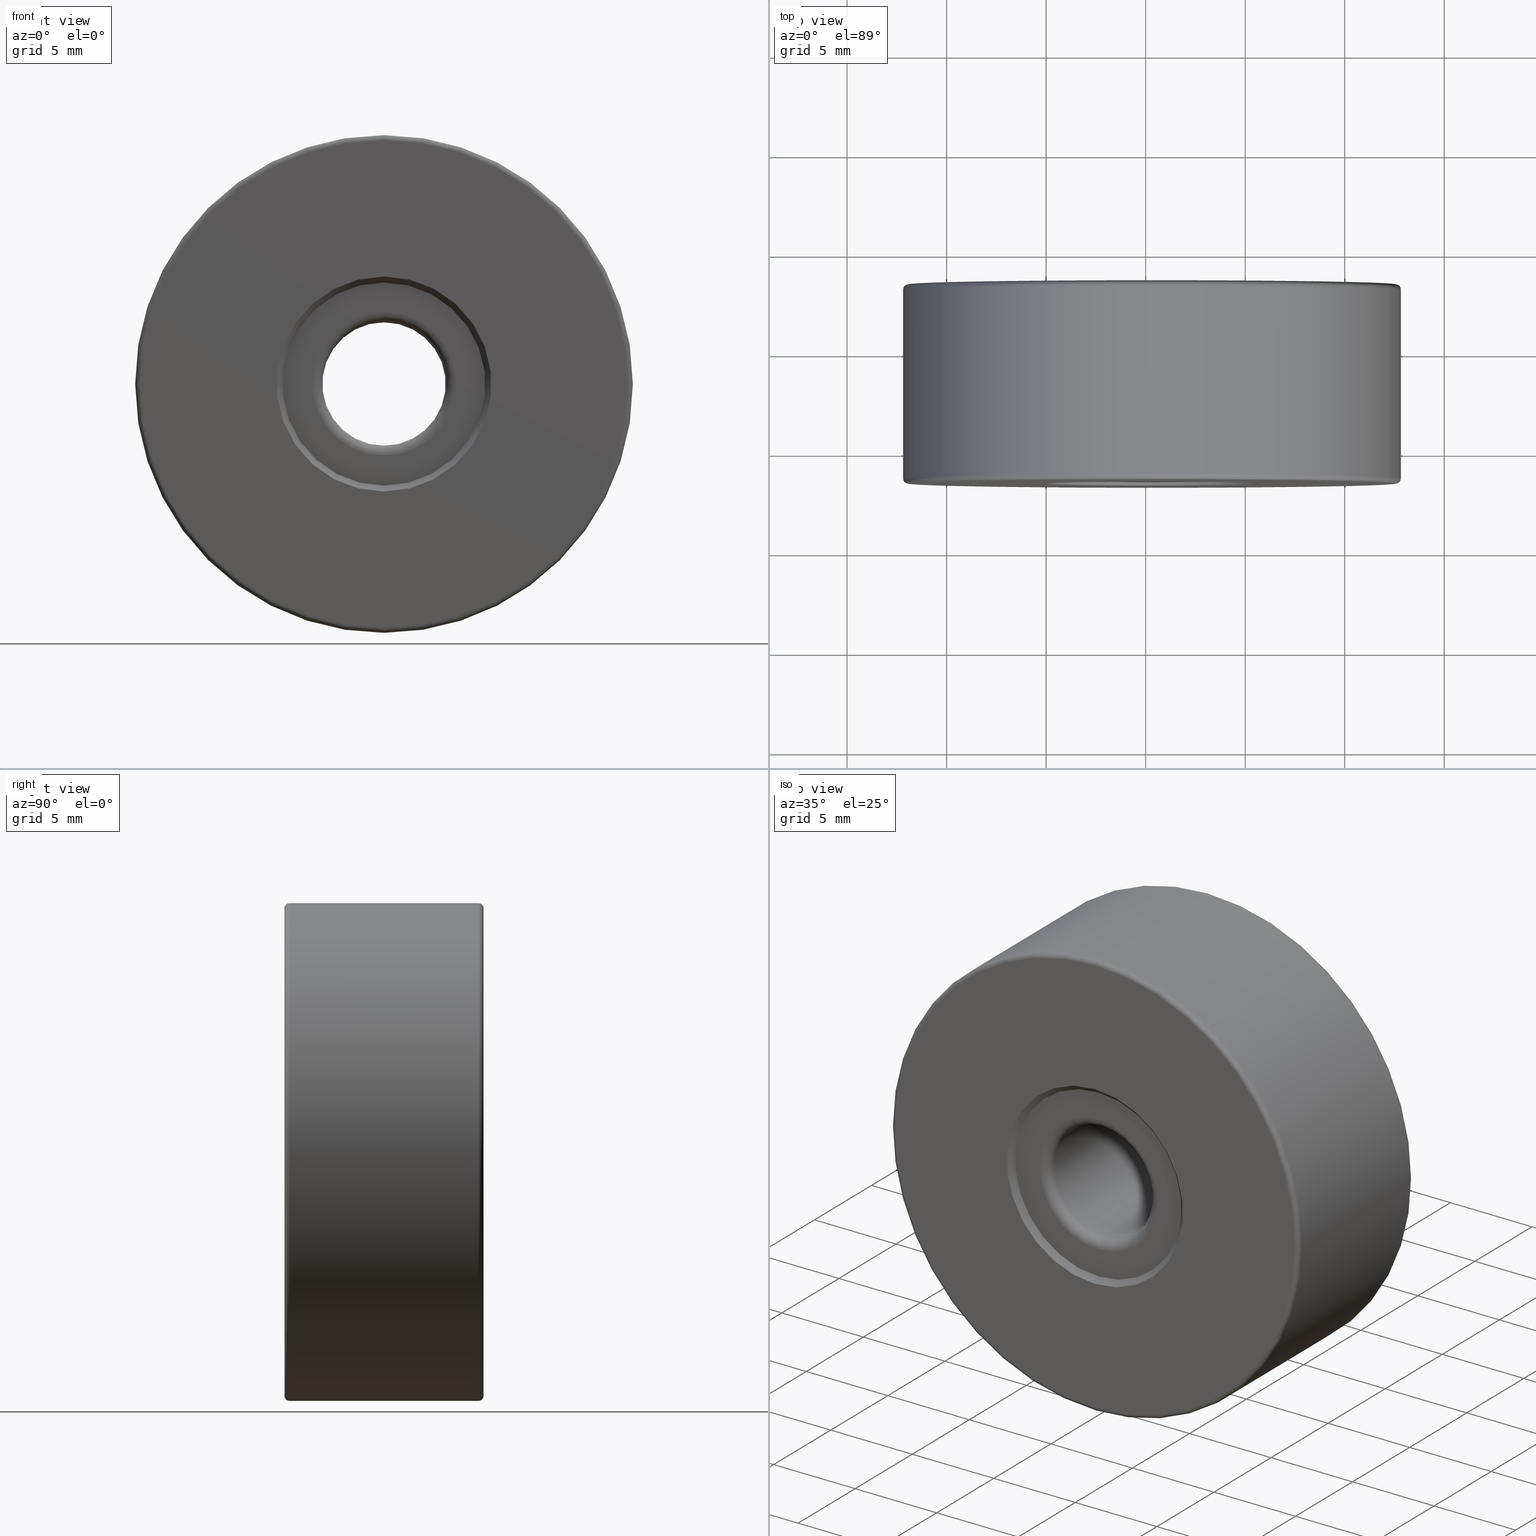
[diagram: canonical four-view strip — front | top / right | iso, engineering-drawing reading convention]
A machine part, canonical four-view strip (front | top / right | iso — engineering-drawing reading convention). The complete STEP part file that produces these views, byte-faithful:
ISO-10303-21;
HEADER;
FILE_DESCRIPTION (( 'STEP AP203' ),
    '1' );
FILE_NAME ('1.4.2.110_ZGH-25-DK10.STEP',
    '2022-04-15T03:01:25',
    ( '' ),
    ( '' ),
    'SwSTEP 2.0',
    'SolidWorks 2021',
    '' );
FILE_SCHEMA (( 'CONFIG_CONTROL_DESIGN' ));
ENDSEC;

DATA;
#1 = ORIENTED_EDGE ( 'NONE', *, *, #516, .T. ) ;
#2 = EDGE_CURVE ( 'NONE', #55, #326, #376, .T. ) ;
#3 = FACE_OUTER_BOUND ( 'NONE', #410, .T. ) ;
#4 = ORIENTED_EDGE ( 'NONE', *, *, #186, .T. ) ;
#5 = DIRECTION ( 'NONE',  ( 0.0000000000000000000, 1.000000000000000000, 0.0000000000000000000 ) ) ;
#6 = TOROIDAL_SURFACE ( 'NONE', #397, 3.600000000000000089, 0.5000000000000000000 ) ;
#7 = EDGE_CURVE ( 'NONE', #604, #86, #145, .T. ) ;
#8 = DIRECTION ( 'NONE',  ( 0.0000000000000000000, 0.0000000000000000000, -1.000000000000000000 ) ) ;
#9 = CARTESIAN_POINT ( 'NONE',  ( -4.682026255059964726, -5.794975976998276046, 28.10000000000000142 ) ) ;
#10 = EDGE_CURVE ( 'NONE', #51, #87, #102, .T. ) ;
#11 = DIRECTION ( 'NONE',  ( 0.0000000000000000000, 1.000000000000000000, 0.0000000000000000000 ) ) ;
#12 = CARTESIAN_POINT ( 'NONE',  ( -4.682026255059962949, 3.405024023001725020, 12.75000000000000178 ) ) ;
#13 = CARTESIAN_POINT ( 'NONE',  ( -4.682026255059964726, -6.594975976998274980, 28.10000000000000142 ) ) ;
#14 = AXIS2_PLACEMENT_3D ( 'NONE', #412, #128, #508 ) ;
#15 = AXIS2_PLACEMENT_3D ( 'NONE', #252, #62, #443 ) ;
#16 = CARTESIAN_POINT ( 'NONE',  ( -4.682026255059964726, -6.344975976998274980, 12.50000000000000000 ) ) ;
#17 = ADVANCED_FACE ( 'NONE', ( #315 ), #233, .T. ) ;
#18 = DIRECTION ( 'NONE',  ( 0.0000000000000000000, 0.0000000000000000000, -1.000000000000000000 ) ) ;
#19 = ORIENTED_EDGE ( 'NONE', *, *, #27, .F. ) ;
#20 = DIRECTION ( 'NONE',  ( 1.000000000000000000, 0.0000000000000000000, -1.224646799147353207E-16 ) ) ;
#21 = CARTESIAN_POINT ( 'NONE',  ( -4.682026255059964726, -6.344975976998274980, 25.00000000000000000 ) ) ;
#22 = PERSON_AND_ORGANIZATION ( #607, #368 ) ;
#23 = CARTESIAN_POINT ( 'NONE',  ( -4.682026255059964726, -5.794975976998276046, 25.00000000000000000 ) ) ;
#24 = PERSON_AND_ORGANIZATION ( #607, #368 ) ;
#25 = AXIS2_PLACEMENT_3D ( 'NONE', #484, #236, #429 ) ;
#26 = CARTESIAN_POINT ( 'NONE',  ( -4.682026255059962949, 3.405024023001725020, 37.50000000000000711 ) ) ;
#27 = EDGE_CURVE ( 'NONE', #131, #246, #195, .T. ) ;
#28 = DIRECTION ( 'NONE',  ( -1.000000000000000000, 0.0000000000000000000, 0.0000000000000000000 ) ) ;
#29 = ORIENTED_EDGE ( 'NONE', *, *, #302, .F. ) ;
#30 = APPROVAL_DATE_TIME ( #268, #90 ) ;
#31 = DIRECTION ( 'NONE',  ( 0.0000000000000000000, 0.0000000000000000000, -1.000000000000000000 ) ) ;
#32 = ORIENTED_EDGE ( 'NONE', *, *, #278, .T. ) ;
#33 = LOCAL_TIME ( 11, 1, 25.00000000000000000, #271 ) ;
#34 = TOROIDAL_SURFACE ( 'NONE', #565, 3.600000000000000089, 0.5000000000000000000 ) ;
#35 = AXIS2_PLACEMENT_3D ( 'NONE', #65, #502, #18 ) ;
#36 = ADVANCED_FACE ( 'NONE', ( #328 ), #317, .F. ) ;
#37 = CARTESIAN_POINT ( 'NONE',  ( -4.682026255059962949, -6.344975976998274980, 37.50000000000000711 ) ) ;
#38 = VERTEX_POINT ( 'NONE', #551 ) ;
#39 = EDGE_CURVE ( 'NONE', #326, #51, #205, .T. ) ;
#40 = CARTESIAN_POINT ( 'NONE',  ( -4.682026255059964726, -5.794975976998276046, 21.40000000000000213 ) ) ;
#41 = ORIENTED_EDGE ( 'NONE', *, *, #578, .F. ) ;
#42 = DIRECTION ( 'NONE',  ( -1.000000000000000000, -0.0000000000000000000, -0.0000000000000000000 ) ) ;
#43 = ORIENTED_EDGE ( 'NONE', *, *, #99, .F. ) ;
#44 = DIRECTION ( 'NONE',  ( 0.0000000000000000000, 0.0000000000000000000, -1.000000000000000000 ) ) ;
#45 = AXIS2_PLACEMENT_3D ( 'NONE', #356, #548, #120 ) ;
#46 = TOROIDAL_SURFACE ( 'NONE', #555, 12.25000000000000000, 0.2500000000000000000 ) ;
#47 = ORIENTED_EDGE ( 'NONE', *, *, #158, .T. ) ;
#48 = CARTESIAN_POINT ( 'NONE',  ( -4.682026255059963837, 3.105024023001725197, 21.40000000000000213 ) ) ;
#49 = FACE_OUTER_BOUND ( 'NONE', #486, .T. ) ;
#50 = ADVANCED_FACE ( 'NONE', ( #49 ), #34, .T. ) ;
#51 = VERTEX_POINT ( 'NONE', #37 ) ;
#52 = FACE_OUTER_BOUND ( 'NONE', #230, .T. ) ;
#53 = ORIENTED_EDGE ( 'NONE', *, *, #148, .F. ) ;
#54 = DIRECTION ( 'NONE',  ( 0.0000000000000000000, -0.0000000000000000000, 1.000000000000000000 ) ) ;
#55 = VERTEX_POINT ( 'NONE', #537 ) ;
#56 = CIRCLE ( 'NONE', #224, 0.2500000000000002220 ) ;
#57 = CARTESIAN_POINT ( 'NONE',  ( -4.682026255059962949, 3.155024023001725020, 12.50000000000000000 ) ) ;
#58 = EDGE_CURVE ( 'NONE', #413, #143, #59, .T. ) ;
#59 = LINE ( 'NONE', #13, #266 ) ;
#60 = DIRECTION ( 'NONE',  ( -1.000000000000000000, 0.0000000000000000000, 0.0000000000000000000 ) ) ;
#61 = PRODUCT_DEFINITION_SHAPE ( 'NONE', 'NONE',  #76 ) ;
#62 = DIRECTION ( 'NONE',  ( 0.0000000000000000000, 0.0000000000000000000, 1.000000000000000000 ) ) ;
#63 = DIRECTION ( 'NONE',  ( 0.0000000000000000000, 0.0000000000000000000, 1.000000000000000000 ) ) ;
#64 = LINE ( 'NONE', #345, #322 ) ;
#65 = CARTESIAN_POINT ( 'NONE',  ( -4.682026255059964726, -6.594975976998274980, 25.00000000000000000 ) ) ;
#66 = AXIS2_PLACEMENT_3D ( 'NONE', #176, #563, #324 ) ;
#67 = VECTOR ( 'NONE', #241, 1000.000000000000000 ) ;
#68 = ORIENTED_EDGE ( 'NONE', *, *, #154, .F. ) ;
#69 = DIRECTION ( 'NONE',  ( 0.0000000000000000000, 0.0000000000000000000, 1.000000000000000000 ) ) ;
#70 = CARTESIAN_POINT ( 'NONE',  ( -4.682026255059964726, -6.344975976998274980, 25.00000000000000000 ) ) ;
#71 = PERSON_AND_ORGANIZATION ( #607, #368 ) ;
#72 = CARTESIAN_POINT ( 'NONE',  ( -4.682026255059963837, 3.405024023001725020, 19.59999999999999787 ) ) ;
#73 = DIRECTION ( 'NONE',  ( -0.0000000000000000000, -1.000000000000000000, -0.0000000000000000000 ) ) ;
#74 = CARTESIAN_POINT ( 'NONE',  ( -4.682026255059964726, 3.405024023001725020, 25.00000000000000000 ) ) ;
#75 = SECURITY_CLASSIFICATION ( '', '', #306 ) ;
#76 = PRODUCT_DEFINITION ( 'δ֪', '', #257, #214 ) ;
#77 = APPROVAL_ROLE ( '' ) ;
#78 = ORIENTED_EDGE ( 'NONE', *, *, #578, .T. ) ;
#79 = DIRECTION ( 'NONE',  ( 0.0000000000000000000, 0.0000000000000000000, 1.000000000000000000 ) ) ;
#80 = COORDINATED_UNIVERSAL_TIME_OFFSET ( 8, 0, .AHEAD. ) ;
#81 = CC_DESIGN_PERSON_AND_ORGANIZATION_ASSIGNMENT ( #71, #357, ( #257 ) ) ;
#82 = EDGE_LOOP ( 'NONE', ( #159, #29, #472, #518 ) ) ;
#83 = DIRECTION ( 'NONE',  ( 0.0000000000000000000, 0.0000000000000000000, 1.000000000000000000 ) ) ;
#84 = CIRCLE ( 'NONE', #172, 0.5000000000000004441 ) ;
#85 = CIRCLE ( 'NONE', #475, 0.2500000000000002220 ) ;
#86 = VERTEX_POINT ( 'NONE', #582 ) ;
#87 = VERTEX_POINT ( 'NONE', #16 ) ;
#88 = FACE_BOUND ( 'NONE', #187, .T. ) ;
#89 = ORIENTED_EDGE ( 'NONE', *, *, #27, .T. ) ;
#90 = APPROVAL ( #553, 'δָ��' ) ;
#91 = DIRECTION ( 'NONE',  ( 0.0000000000000000000, 0.0000000000000000000, 1.000000000000000000 ) ) ;
#92 = VECTOR ( 'NONE', #395, 1000.000000000000000 ) ;
#93 = LOCAL_TIME ( 11, 1, 25.00000000000000000, #173 ) ;
#94 = ORIENTED_EDGE ( 'NONE', *, *, #296, .F. ) ;
#95 = DIRECTION ( 'NONE',  ( 0.0000000000000000000, 0.0000000000000000000, 1.000000000000000000 ) ) ;
#96 = ORIENTED_EDGE ( 'NONE', *, *, #228, .T. ) ;
#97 = CARTESIAN_POINT ( 'NONE',  ( -4.682026255059964726, -6.594975976998274980, 21.90000000000000213 ) ) ;
#98 = DIRECTION ( 'NONE',  ( 0.0000000000000000000, 0.0000000000000000000, 1.000000000000000000 ) ) ;
#99 = EDGE_CURVE ( 'NONE', #86, #604, #311, .T. ) ;
#100 = VERTEX_POINT ( 'NONE', #110 ) ;
#101 = PLANE ( 'NONE',  #313 ) ;
#102 = CIRCLE ( 'NONE', #554, 12.50000000000000355 ) ;
#103 = CONICAL_SURFACE ( 'NONE', #35, 5.400000000000002132, 0.7853981633974439491 ) ;
#104 = DIRECTION ( 'NONE',  ( -0.0000000000000000000, -1.000000000000000000, -0.0000000000000000000 ) ) ;
#105 =( NAMED_UNIT ( * ) PLANE_ANGLE_UNIT ( ) SI_UNIT ( $, .RADIAN. ) );
#106 = FACE_OUTER_BOUND ( 'NONE', #464, .T. ) ;
#107 = DIRECTION ( 'NONE',  ( 0.0000000000000000000, 0.0000000000000000000, 1.000000000000000000 ) ) ;
#108 = ADVANCED_FACE ( 'NONE', ( #151 ), #284, .T. ) ;
#109 = CYLINDRICAL_SURFACE ( 'NONE', #137, 3.099999999999998757 ) ;
#110 = CARTESIAN_POINT ( 'NONE',  ( -4.682026255059963837, 3.105024023001725197, 19.90000000000000213 ) ) ;
#111 = DIRECTION ( 'NONE',  ( 0.0000000000000000000, 0.0000000000000000000, -1.000000000000000000 ) ) ;
#112 = CARTESIAN_POINT ( 'NONE',  ( -4.682026255059964726, 3.405024023001725020, 25.00000000000000000 ) ) ;
#113 = ORIENTED_EDGE ( 'NONE', *, *, #348, .F. ) ;
#114 = APPLICATION_PROTOCOL_DEFINITION ( 'international standard', 'config_control_design', 1994, #491 ) ;
#115 = EDGE_CURVE ( 'NONE', #100, #504, #299, .T. ) ;
#116 = CARTESIAN_POINT ( 'NONE',  ( -4.682026255059964726, -5.794975976998276046, 25.00000000000000000 ) ) ;
#117 = CIRCLE ( 'NONE', #396, 12.50000000000000355 ) ;
#118 =( GEOMETRIC_REPRESENTATION_CONTEXT ( 3 ) GLOBAL_UNCERTAINTY_ASSIGNED_CONTEXT ( ( #595 ) ) GLOBAL_UNIT_ASSIGNED_CONTEXT ( ( #536, #105, #347 ) ) REPRESENTATION_CONTEXT ( 'NONE', 'WORKASPACE' ) );
#119 = APPROVAL_ROLE ( '' ) ;
#120 = DIRECTION ( 'NONE',  ( 0.0000000000000000000, 0.0000000000000000000, 1.000000000000000000 ) ) ;
#121 = APPROVAL_DATE_TIME ( #599, #194 ) ;
#122 = EDGE_CURVE ( 'NONE', #100, #325, #523, .T. ) ;
#123 = CALENDAR_DATE ( 2022, 15, 4 ) ;
#124 = ORIENTED_EDGE ( 'NONE', *, *, #186, .F. ) ;
#125 = AXIS2_PLACEMENT_3D ( 'NONE', #178, #237, #189 ) ;
#126 = CALENDAR_DATE ( 2022, 15, 4 ) ;
#127 = TOROIDAL_SURFACE ( 'NONE', #490, 3.600000000000000089, 0.5000000000000000000 ) ;
#128 = DIRECTION ( 'NONE',  ( -0.0000000000000000000, -1.000000000000000000, -0.0000000000000000000 ) ) ;
#129 = APPROVAL_PERSON_ORGANIZATION ( #220, #194, #77 ) ;
#130 = ORIENTED_EDGE ( 'NONE', *, *, #383, .F. ) ;
#131 = VERTEX_POINT ( 'NONE', #253 ) ;
#132 = PERSON_AND_ORGANIZATION_ROLE ( 'creator' ) ;
#133 = ADVANCED_FACE ( 'NONE', ( #353 ), #473, .F. ) ;
#134 = EDGE_LOOP ( 'NONE', ( #130, #571, #567, #53 ) ) ;
#135 = DIRECTION ( 'NONE',  ( 0.0000000000000000000, 0.0000000000000000000, 1.000000000000000000 ) ) ;
#136 = AXIS2_PLACEMENT_3D ( 'NONE', #275, #517, #467 ) ;
#137 = AXIS2_PLACEMENT_3D ( 'NONE', #156, #350, #69 ) ;
#138 = VERTEX_POINT ( 'NONE', #188 ) ;
#139 = ORIENTED_EDGE ( 'NONE', *, *, #231, .F. ) ;
#140 = CC_DESIGN_DATE_AND_TIME_ASSIGNMENT ( #164, #603, ( #76 ) ) ;
#141 = DIRECTION ( 'NONE',  ( 0.0000000000000000000, 1.000000000000000000, 0.0000000000000000000 ) ) ;
#142 = DIRECTION ( 'NONE',  ( 0.0000000000000000000, 0.0000000000000000000, 1.000000000000000000 ) ) ;
#143 = VERTEX_POINT ( 'NONE', #561 ) ;
#144 = CARTESIAN_POINT ( 'NONE',  ( -4.682026255059964726, -5.794975976998276046, 21.90000000000000213 ) ) ;
#145 = CIRCLE ( 'NONE', #354, 12.25000000000000355 ) ;
#146 = ORIENTED_EDGE ( 'NONE', *, *, #231, .T. ) ;
#147 = CARTESIAN_POINT ( 'NONE',  ( -4.682026255059964726, -6.594975976998274980, 25.00000000000000000 ) ) ;
#148 = EDGE_CURVE ( 'NONE', #171, #422, #84, .T. ) ;
#149 = ORIENTED_EDGE ( 'NONE', *, *, #586, .T. ) ;
#150 = DIRECTION ( 'NONE',  ( -0.0000000000000000000, 1.000000000000000000, -0.0000000000000000000 ) ) ;
#151 = FACE_OUTER_BOUND ( 'NONE', #362, .T. ) ;
#152 = CARTESIAN_POINT ( 'NONE',  ( -4.682026255059964726, 3.105024023001725197, 25.00000000000000000 ) ) ;
#153 = DIRECTION ( 'NONE',  ( 0.0000000000000000000, 1.000000000000000000, 0.0000000000000000000 ) ) ;
#154 = EDGE_CURVE ( 'NONE', #423, #428, #117, .T. ) ;
#155 = FACE_OUTER_BOUND ( 'NONE', #449, .T. ) ;
#156 = CARTESIAN_POINT ( 'NONE',  ( -4.682026255059964726, -6.594975976998274980, 25.00000000000000000 ) ) ;
#157 = CARTESIAN_POINT ( 'NONE',  ( -4.682026255059964726, 3.105024023001725197, 25.00000000000000000 ) ) ;
#158 = EDGE_CURVE ( 'NONE', #325, #100, #437, .T. ) ;
#159 = ORIENTED_EDGE ( 'NONE', *, *, #228, .F. ) ;
#160 = DIRECTION ( 'NONE',  ( 0.0000000000000000000, 0.7071067811865444641, 0.7071067811865505703 ) ) ;
#161 = DIRECTION ( 'NONE',  ( 1.000000000000000000, -0.0000000000000000000, 1.224646799147353207E-16 ) ) ;
#162 = DIRECTION ( 'NONE',  ( 0.0000000000000000000, -0.7071067811865505703, -0.7071067811865444641 ) ) ;
#163 = AXIS2_PLACEMENT_3D ( 'NONE', #295, #11, #107 ) ;
#164 = DATE_AND_TIME ( #123, #476 ) ;
#165 = ADVANCED_FACE ( 'NONE', ( #88, #613 ), #229, .T. ) ;
#166 = DIRECTION ( 'NONE',  ( 0.0000000000000000000, 0.0000000000000000000, -1.000000000000000000 ) ) ;
#167 = DIRECTION ( 'NONE',  ( 0.0000000000000000000, 0.0000000000000000000, 1.000000000000000000 ) ) ;
#168 = CARTESIAN_POINT ( 'NONE',  ( -4.682026255059964726, -6.594975976998274980, 25.00000000000000000 ) ) ;
#169 = ORIENTED_EDGE ( 'NONE', *, *, #586, .F. ) ;
#170 = DIRECTION ( 'NONE',  ( 0.0000000000000000000, -1.000000000000000000, 0.0000000000000000000 ) ) ;
#171 = VERTEX_POINT ( 'NONE', #374 ) ;
#172 = AXIS2_PLACEMENT_3D ( 'NONE', #40, #42, #135 ) ;
#173 = COORDINATED_UNIVERSAL_TIME_OFFSET ( 8, 0, .AHEAD. ) ;
#174 = CIRCLE ( 'NONE', #602, 5.400000000000002132 ) ;
#175 = APPLICATION_CONTEXT ( 'configuration controlled 3d designs of mechanical parts and assemblies' ) ;
#176 = CARTESIAN_POINT ( 'NONE',  ( -4.682026255059964726, 3.105024023001725197, 25.00000000000000000 ) ) ;
#177 = LOCAL_TIME ( 11, 1, 25.00000000000000000, #371 ) ;
#178 = CARTESIAN_POINT ( 'NONE',  ( -4.682026255059964726, -6.594975976998274980, 25.00000000000000000 ) ) ;
#179 = ORIENTED_EDGE ( 'NONE', *, *, #278, .F. ) ;
#180 = PERSON_AND_ORGANIZATION ( #607, #368 ) ;
#181 = ORIENTED_EDGE ( 'NONE', *, *, #122, .T. ) ;
#182 = DIRECTION ( 'NONE',  ( 0.0000000000000000000, 0.0000000000000000000, 1.000000000000000000 ) ) ;
#183 = ORIENTED_EDGE ( 'NONE', *, *, #314, .F. ) ;
#184 = CIRCLE ( 'NONE', #216, 3.599999999999999201 ) ;
#185 = CONICAL_SURFACE ( 'NONE', #333, 5.100000000000000533, 0.7853981633974526089 ) ;
#186 = EDGE_CURVE ( 'NONE', #375, #316, #364, .T. ) ;
#187 = EDGE_LOOP ( 'NONE', ( #552, #570 ) ) ;
#188 = CARTESIAN_POINT ( 'NONE',  ( -4.682026255059964726, 3.105024023001725197, 28.60000000000000142 ) ) ;
#189 = DIRECTION ( 'NONE',  ( 0.0000000000000000000, 0.0000000000000000000, 1.000000000000000000 ) ) ;
#190 = ORIENTED_EDGE ( 'NONE', *, *, #115, .F. ) ;
#191 = DIRECTION ( 'NONE',  ( 8.659560562354895880E-17, -0.7071067811865505703, 0.7071067811865444641 ) ) ;
#192 = ORIENTED_EDGE ( 'NONE', *, *, #308, .T. ) ;
#193 = FACE_BOUND ( 'NONE', #240, .T. ) ;
#194 = APPROVAL ( #218, 'δָ��' ) ;
#195 = CIRCLE ( 'NONE', #310, 5.100000000000000533 ) ;
#196 = AXIS2_PLACEMENT_3D ( 'NONE', #70, #494, #346 ) ;
#197 = ORIENTED_EDGE ( 'NONE', *, *, #302, .T. ) ;
#198 = CARTESIAN_POINT ( 'NONE',  ( -4.682026255059963837, -6.594975976998274980, 30.40000000000000213 ) ) ;
#199 = CARTESIAN_POINT ( 'NONE',  ( -4.682026255059964726, -6.594975976998274980, 25.00000000000000000 ) ) ;
#200 = DIRECTION ( 'NONE',  ( -0.0000000000000000000, -1.000000000000000000, -0.0000000000000000000 ) ) ;
#201 = EDGE_CURVE ( 'NONE', #138, #375, #601, .T. ) ;
#202 = DIRECTION ( 'NONE',  ( 0.0000000000000000000, 0.0000000000000000000, -1.000000000000000000 ) ) ;
#203 = DIRECTION ( 'NONE',  ( 0.0000000000000000000, 0.0000000000000000000, 1.000000000000000000 ) ) ;
#204 = DIRECTION ( 'NONE',  ( -0.0000000000000000000, 1.000000000000000000, -0.0000000000000000000 ) ) ;
#205 = CIRCLE ( 'NONE', #534, 0.2500000000000002220 ) ;
#206 = CC_DESIGN_PERSON_AND_ORGANIZATION_ASSIGNMENT ( #510, #132, ( #257 ) ) ;
#207 = CIRCLE ( 'NONE', #45, 3.099999999999998757 ) ;
#208 = APPROVAL_PERSON_ORGANIZATION ( #558, #528, #119 ) ;
#209 = PRODUCT ( '1.4.2.110_ZGH-25-DK10', '1.4.2.110_ZGH-25-DK10', '', ( #293 ) ) ;
#210 = CARTESIAN_POINT ( 'NONE',  ( -4.682026255059964726, 3.155024023001725020, 25.00000000000000000 ) ) ;
#211 = DIRECTION ( 'NONE',  ( -0.0000000000000000000, -1.000000000000000000, -0.0000000000000000000 ) ) ;
#212 = CARTESIAN_POINT ( 'NONE',  ( -4.682026255059964726, 3.105024023001725197, 25.00000000000000000 ) ) ;
#213 = EDGE_CURVE ( 'NONE', #428, #87, #279, .T. ) ;
#214 = DESIGN_CONTEXT ( 'detailed design', #491, 'design' ) ;
#215 = CC_DESIGN_PERSON_AND_ORGANIZATION_ASSIGNMENT ( #248, #543, ( #209 ) ) ;
#216 = AXIS2_PLACEMENT_3D ( 'NONE', #359, #384, #44 ) ;
#217 = CIRCLE ( 'NONE', #500, 0.5000000000000004441 ) ;
#218 = APPROVAL_STATUS ( 'not_yet_approved' ) ;
#219 = LINE ( 'NONE', #26, #589 ) ;
#220 = PERSON_AND_ORGANIZATION ( #607, #368 ) ;
#221 = ORIENTED_EDGE ( 'NONE', *, *, #451, .T. ) ;
#222 = EDGE_CURVE ( 'NONE', #423, #86, #512, .T. ) ;
#223 = ORIENTED_EDGE ( 'NONE', *, *, #314, .T. ) ;
#224 = AXIS2_PLACEMENT_3D ( 'NONE', #541, #249, #111 ) ;
#225 = APPROVAL_STATUS ( 'not_yet_approved' ) ;
#226 = CARTESIAN_POINT ( 'NONE',  ( -4.682026255059964726, 2.605024023001724753, 25.00000000000000000 ) ) ;
#227 = VERTEX_POINT ( 'NONE', #392 ) ;
#228 = EDGE_CURVE ( 'NONE', #55, #87, #56, .T. ) ;
#229 = PLANE ( 'NONE',  #425 ) ;
#230 = EDGE_LOOP ( 'NONE', ( #483, #531, #466, #288 ) ) ;
#231 = EDGE_CURVE ( 'NONE', #325, #227, #64, .T. ) ;
#232 = ORIENTED_EDGE ( 'NONE', *, *, #332, .T. ) ;
#233 = TOROIDAL_SURFACE ( 'NONE', #580, 3.600000000000000089, 0.5000000000000000000 ) ;
#234 = CIRCLE ( 'NONE', #535, 5.400000000000002132 ) ;
#235 = ORIENTED_EDGE ( 'NONE', *, *, #348, .T. ) ;
#236 = DIRECTION ( 'NONE',  ( -0.0000000000000000000, 1.000000000000000000, -0.0000000000000000000 ) ) ;
#237 = DIRECTION ( 'NONE',  ( -0.0000000000000000000, -1.000000000000000000, -0.0000000000000000000 ) ) ;
#238 = EDGE_LOOP ( 'NONE', ( #593, #277, #258, #139 ) ) ;
#239 = DIRECTION ( 'NONE',  ( 0.0000000000000000000, 0.0000000000000000000, -1.000000000000000000 ) ) ;
#240 = EDGE_LOOP ( 'NONE', ( #373, #349 ) ) ;
#241 = DIRECTION ( 'NONE',  ( -0.0000000000000000000, 1.000000000000000000, -0.0000000000000000000 ) ) ;
#242 = DIRECTION ( 'NONE',  ( 0.0000000000000000000, 0.0000000000000000000, 1.000000000000000000 ) ) ;
#243 = AXIS2_PLACEMENT_3D ( 'NONE', #401, #351, #544 ) ;
#244 = MANIFOLD_SURFACE_SHAPE_REPRESENTATION ( '1.4.2.110_ZGH-25-DK10', ( #421, #15 ), #118 ) ;
#245 = TOROIDAL_SURFACE ( 'NONE', #163, 12.25000000000000000, 0.2500000000000000000 ) ;
#246 = VERTEX_POINT ( 'NONE', #255 ) ;
#247 = CARTESIAN_POINT ( 'NONE',  ( -4.682026255059964726, 3.405024023001725020, 25.00000000000000000 ) ) ;
#248 = PERSON_AND_ORGANIZATION ( #607, #368 ) ;
#249 = DIRECTION ( 'NONE',  ( 1.000000000000000000, -0.0000000000000000000, 1.224646799147353207E-16 ) ) ;
#250 = FACE_OUTER_BOUND ( 'NONE', #542, .T. ) ;
#251 = DIRECTION ( 'NONE',  ( 0.0000000000000000000, 1.000000000000000000, 0.0000000000000000000 ) ) ;
#252 = CARTESIAN_POINT ( 'NONE',  ( 0.0000000000000000000, 0.0000000000000000000, 0.0000000000000000000 ) ) ;
#253 = CARTESIAN_POINT ( 'NONE',  ( -4.682026255059964726, -6.294975976998275158, 19.90000000000000213 ) ) ;
#254 = AXIS2_PLACEMENT_3D ( 'NONE', #520, #600, #31 ) ;
#255 = CARTESIAN_POINT ( 'NONE',  ( -4.682026255059963837, -6.294975976998275158, 30.10000000000000142 ) ) ;
#256 = CYLINDRICAL_SURFACE ( 'NONE', #547, 12.50000000000000000 ) ;
#257 = PRODUCT_DEFINITION_FORMATION_WITH_SPECIFIED_SOURCE ( '�κ�', '', #209, .NOT_KNOWN. ) ;
#258 = ORIENTED_EDGE ( 'NONE', *, *, #564, .F. ) ;
#259 = PRODUCT_RELATED_PRODUCT_CATEGORY ( 'detail', '', ( #209 ) ) ;
#260 = FACE_OUTER_BOUND ( 'NONE', #431, .T. ) ;
#261 = APPROVAL_ROLE ( '' ) ;
#262 = FACE_OUTER_BOUND ( 'NONE', #82, .T. ) ;
#263 = DIRECTION ( 'NONE',  ( 0.0000000000000000000, 0.0000000000000000000, 1.000000000000000000 ) ) ;
#264 = LOCAL_TIME ( 11, 1, 25.00000000000000000, #501 ) ;
#265 = DIRECTION ( 'NONE',  ( 0.0000000000000000000, 1.000000000000000000, 0.0000000000000000000 ) ) ;
#266 = VECTOR ( 'NONE', #204, 1000.000000000000000 ) ;
#267 = AXIS2_PLACEMENT_3D ( 'NONE', #112, #300, #545 ) ;
#268 = DATE_AND_TIME ( #453, #33 ) ;
#269 = ADVANCED_FACE ( 'NONE', ( #106 ), #572, .T. ) ;
#270 = EDGE_LOOP ( 'NONE', ( #47, #181 ) ) ;
#271 = COORDINATED_UNIVERSAL_TIME_OFFSET ( 8, 0, .AHEAD. ) ;
#272 = DIRECTION ( 'NONE',  ( -0.0000000000000000000, 1.000000000000000000, -0.0000000000000000000 ) ) ;
#273 = ORIENTED_EDGE ( 'NONE', *, *, #7, .T. ) ;
#274 = AXIS2_PLACEMENT_3D ( 'NONE', #503, #549, #263 ) ;
#275 = CARTESIAN_POINT ( 'NONE',  ( -4.682026255059964726, 3.105024023001725197, 25.00000000000000000 ) ) ;
#276 = EDGE_CURVE ( 'NONE', #428, #423, #304, .T. ) ;
#277 = ORIENTED_EDGE ( 'NONE', *, *, #115, .T. ) ;
#278 = EDGE_CURVE ( 'NONE', #375, #138, #546, .T. ) ;
#279 = LINE ( 'NONE', #489, #415 ) ;
#280 = ORIENTED_EDGE ( 'NONE', *, *, #308, .F. ) ;
#281 = DIRECTION ( 'NONE',  ( 0.0000000000000000000, 0.0000000000000000000, 1.000000000000000000 ) ) ;
#282 = EDGE_LOOP ( 'NONE', ( #149, #232 ) ) ;
#283 = PLANE ( 'NONE',  #574 ) ;
#284 = TOROIDAL_SURFACE ( 'NONE', #343, 12.25000000000000000, 0.2500000000000000000 ) ;
#285 = AXIS2_PLACEMENT_3D ( 'NONE', #147, #141, #54 ) ;
#286 = ORIENTED_EDGE ( 'NONE', *, *, #58, .T. ) ;
#287 = DIRECTION ( 'NONE',  ( 0.0000000000000000000, 1.000000000000000000, 0.0000000000000000000 ) ) ;
#288 = ORIENTED_EDGE ( 'NONE', *, *, #462, .F. ) ;
#289 = LINE ( 'NONE', #97, #67 ) ;
#290 = CARTESIAN_POINT ( 'NONE',  ( -4.682026255059963837, 3.105024023001725197, 19.90000000000000213 ) ) ;
#291 = ORIENTED_EDGE ( 'NONE', *, *, #605, .F. ) ;
#292 = DIRECTION ( 'NONE',  ( 0.0000000000000000000, 1.000000000000000000, 0.0000000000000000000 ) ) ;
#293 = MECHANICAL_CONTEXT ( 'NONE', #175, 'mechanical' ) ;
#294 = CIRCLE ( 'NONE', #456, 5.100000000000000533 ) ;
#295 = CARTESIAN_POINT ( 'NONE',  ( -4.682026255059964726, 3.155024023001725020, 25.00000000000000000 ) ) ;
#296 = EDGE_CURVE ( 'NONE', #423, #51, #219, .T. ) ;
#297 = DIRECTION ( 'NONE',  ( 0.0000000000000000000, 0.0000000000000000000, 1.000000000000000000 ) ) ;
#298 = DIRECTION ( 'NONE',  ( 0.0000000000000000000, 1.000000000000000000, 0.0000000000000000000 ) ) ;
#299 = LINE ( 'NONE', #290, #92 ) ;
#300 = DIRECTION ( 'NONE',  ( -0.0000000000000000000, -1.000000000000000000, -0.0000000000000000000 ) ) ;
#301 = ORIENTED_EDGE ( 'NONE', *, *, #471, .T. ) ;
#302 = EDGE_CURVE ( 'NONE', #326, #55, #405, .T. ) ;
#303 = EDGE_CURVE ( 'NONE', #171, #420, #184, .T. ) ;
#304 = CIRCLE ( 'NONE', #465, 12.50000000000000355 ) ;
#305 = CIRCLE ( 'NONE', #196, 12.50000000000000355 ) ;
#306 = SECURITY_CLASSIFICATION_LEVEL ( 'unclassified' ) ;
#307 = DIRECTION ( 'NONE',  ( 0.0000000000000000000, 0.0000000000000000000, 1.000000000000000000 ) ) ;
#308 = EDGE_CURVE ( 'NONE', #246, #131, #294, .T. ) ;
#309 = CALENDAR_DATE ( 2022, 15, 4 ) ;
#310 = AXIS2_PLACEMENT_3D ( 'NONE', #459, #559, #361 ) ;
#311 = CIRCLE ( 'NONE', #609, 12.25000000000000355 ) ;
#312 = ORIENTED_EDGE ( 'NONE', *, *, #471, .F. ) ;
#313 = AXIS2_PLACEMENT_3D ( 'NONE', #573, #292, #487 ) ;
#314 = EDGE_CURVE ( 'NONE', #143, #316, #438, .T. ) ;
#315 = FACE_OUTER_BOUND ( 'NONE', #134, .T. ) ;
#316 = VERTEX_POINT ( 'NONE', #479 ) ;
#317 = CYLINDRICAL_SURFACE ( 'NONE', #444, 3.099999999999998757 ) ;
#318 = ORIENTED_EDGE ( 'NONE', *, *, #7, .F. ) ;
#319 = DIRECTION ( 'NONE',  ( -0.0000000000000000000, -1.000000000000000000, -0.0000000000000000000 ) ) ;
#320 = ADVANCED_FACE ( 'NONE', ( #339, #474 ), #283, .T. ) ;
#321 = ORIENTED_EDGE ( 'NONE', *, *, #276, .F. ) ;
#322 = VECTOR ( 'NONE', #160, 1000.000000000000000 ) ;
#323 = AXIS2_PLACEMENT_3D ( 'NONE', #116, #587, #538 ) ;
#324 = DIRECTION ( 'NONE',  ( 0.0000000000000000000, 0.0000000000000000000, 1.000000000000000000 ) ) ;
#325 = VERTEX_POINT ( 'NONE', #386 ) ;
#326 = VERTEX_POINT ( 'NONE', #435 ) ;
#327 = CARTESIAN_POINT ( 'NONE',  ( -4.682026255059964726, 2.605024023001724753, 25.00000000000000000 ) ) ;
#328 = FACE_OUTER_BOUND ( 'NONE', #594, .T. ) ;
#329 = ORIENTED_EDGE ( 'NONE', *, *, #2, .F. ) ;
#330 = CARTESIAN_POINT ( 'NONE',  ( -4.682026255059964726, -5.794975976998276046, 25.00000000000000000 ) ) ;
#331 = CC_DESIGN_SECURITY_CLASSIFICATION ( #75, ( #257 ) ) ;
#332 = EDGE_CURVE ( 'NONE', #38, #378, #513, .T. ) ;
#333 = AXIS2_PLACEMENT_3D ( 'NONE', #212, #493, #203 ) ;
#334 = CARTESIAN_POINT ( 'NONE',  ( -4.682026255059964726, 3.405024023001725020, 25.00000000000000000 ) ) ;
#335 = DIRECTION ( 'NONE',  ( 0.0000000000000000000, 0.0000000000000000000, 1.000000000000000000 ) ) ;
#336 = ORIENTED_EDGE ( 'NONE', *, *, #462, .T. ) ;
#337 = DIRECTION ( 'NONE',  ( 0.0000000000000000000, 1.000000000000000000, 0.0000000000000000000 ) ) ;
#338 = ORIENTED_EDGE ( 'NONE', *, *, #455, .T. ) ;
#339 = FACE_BOUND ( 'NONE', #468, .T. ) ;
#340 = CARTESIAN_POINT ( 'NONE',  ( -4.682026255059964726, 3.155024023001725020, 25.00000000000000000 ) ) ;
#341 = ADVANCED_FACE ( 'NONE', ( #612 ), #127, .T. ) ;
#342 = CARTESIAN_POINT ( 'NONE',  ( -4.682026255059964726, -6.594975976998274980, 25.00000000000000000 ) ) ;
#343 = AXIS2_PLACEMENT_3D ( 'NONE', #340, #153, #63 ) ;
#344 = CIRCLE ( 'NONE', #426, 0.5000000000000004441 ) ;
#345 = CARTESIAN_POINT ( 'NONE',  ( -4.682026255059964726, 3.105024023001725197, 30.10000000000000142 ) ) ;
#346 = DIRECTION ( 'NONE',  ( 0.0000000000000000000, 0.0000000000000000000, 1.000000000000000000 ) ) ;
#347 =( NAMED_UNIT ( * ) SI_UNIT ( $, .STERADIAN. ) SOLID_ANGLE_UNIT ( ) );
#348 = EDGE_CURVE ( 'NONE', #422, #316, #289, .T. ) ;
#349 = ORIENTED_EDGE ( 'NONE', *, *, #436, .T. ) ;
#350 = DIRECTION ( 'NONE',  ( -0.0000000000000000000, 1.000000000000000000, -0.0000000000000000000 ) ) ;
#351 = DIRECTION ( 'NONE',  ( 0.0000000000000000000, 1.000000000000000000, 0.0000000000000000000 ) ) ;
#352 = FACE_OUTER_BOUND ( 'NONE', #238, .T. ) ;
#353 = FACE_OUTER_BOUND ( 'NONE', #614, .T. ) ;
#354 = AXIS2_PLACEMENT_3D ( 'NONE', #74, #265, #142 ) ;
#355 = AXIS2_PLACEMENT_3D ( 'NONE', #199, #403, #297 ) ;
#356 = CARTESIAN_POINT ( 'NONE',  ( -4.682026255059964726, 2.605024023001724753, 25.00000000000000000 ) ) ;
#357 = PERSON_AND_ORGANIZATION_ROLE ( 'design_supplier' ) ;
#358 = CYLINDRICAL_SURFACE ( 'NONE', #267, 12.50000000000000000 ) ;
#359 = CARTESIAN_POINT ( 'NONE',  ( -4.682026255059964726, -6.294975976998275158, 25.00000000000000000 ) ) ;
#360 = CC_DESIGN_DATE_AND_TIME_ASSIGNMENT ( #505, #363, ( #75 ) ) ;
#361 = DIRECTION ( 'NONE',  ( 0.0000000000000000000, 0.0000000000000000000, 1.000000000000000000 ) ) ;
#362 = EDGE_LOOP ( 'NONE', ( #575, #68, #556, #318 ) ) ;
#363 = DATE_TIME_ROLE ( 'classification_date' ) ;
#364 = CIRCLE ( 'NONE', #254, 0.5000000000000004441 ) ;
#365 = CARTESIAN_POINT ( 'NONE',  ( -4.682026255059964726, -6.344975976998274980, 25.00000000000000000 ) ) ;
#366 = CIRCLE ( 'NONE', #406, 3.099999999999998757 ) ;
#367 = ORIENTED_EDGE ( 'NONE', *, *, #408, .F. ) ;
#368 = ORGANIZATION ( 'δָ��', 'δָ��', '' ) ;
#369 = DIRECTION ( 'NONE',  ( 0.0000000000000000000, 1.000000000000000000, 0.0000000000000000000 ) ) ;
#370 = ORIENTED_EDGE ( 'NONE', *, *, #276, .T. ) ;
#371 = COORDINATED_UNIVERSAL_TIME_OFFSET ( 8, 0, .AHEAD. ) ;
#372 = CC_DESIGN_PERSON_AND_ORGANIZATION_ASSIGNMENT ( #22, #596, ( #75 ) ) ;
#373 = ORIENTED_EDGE ( 'NONE', *, *, #564, .T. ) ;
#374 = CARTESIAN_POINT ( 'NONE',  ( -4.682026255059964726, -6.294975976998275158, 21.40000000000000213 ) ) ;
#375 = VERTEX_POINT ( 'NONE', #48 ) ;
#376 = CIRCLE ( 'NONE', #125, 12.25000000000000355 ) ;
#377 = CIRCLE ( 'NONE', #323, 3.099999999999998757 ) ;
#378 = VERTEX_POINT ( 'NONE', #432 ) ;
#379 = FACE_BOUND ( 'NONE', #282, .T. ) ;
#380 = CARTESIAN_POINT ( 'NONE',  ( -4.682026255059964726, -6.294975976998275158, 25.00000000000000000 ) ) ;
#381 = CARTESIAN_POINT ( 'NONE',  ( -4.682026255059964726, -5.794975976998276046, 25.00000000000000000 ) ) ;
#382 = ORIENTED_EDGE ( 'NONE', *, *, #10, .T. ) ;
#383 = EDGE_CURVE ( 'NONE', #420, #171, #398, .T. ) ;
#384 = DIRECTION ( 'NONE',  ( -0.0000000000000000000, 1.000000000000000000, -0.0000000000000000000 ) ) ;
#385 = ORIENTED_EDGE ( 'NONE', *, *, #39, .F. ) ;
#386 = CARTESIAN_POINT ( 'NONE',  ( -4.682026255059964726, 3.105024023001725197, 30.10000000000000142 ) ) ;
#387 = CC_DESIGN_APPROVAL ( #90, ( #75 ) ) ;
#388 = OPEN_SHELL ( 'NONE', ( #133, #269, #527, #481, #615, #50, #550, #17, #165, #418, #36, #341, #320, #447, #427, #108, #463, #539, #399, #482 ) ) ;
#389 = VECTOR ( 'NONE', #162, 1000.000000000000114 ) ;
#390 = ORIENTED_EDGE ( 'NONE', *, *, #158, .F. ) ;
#391 = CARTESIAN_POINT ( 'NONE',  ( -4.682026255059964726, 3.155024023001725020, 37.50000000000000711 ) ) ;
#392 = CARTESIAN_POINT ( 'NONE',  ( -4.682026255059964726, 3.405024023001725020, 30.40000000000000213 ) ) ;
#393 = PLANE ( 'NONE',  #285 ) ;
#394 = DIRECTION ( 'NONE',  ( -0.0000000000000000000, -1.000000000000000000, -0.0000000000000000000 ) ) ;
#395 = DIRECTION ( 'NONE',  ( 8.659560562354969836E-17, 0.7071067811865444641, -0.7071067811865505703 ) ) ;
#396 = AXIS2_PLACEMENT_3D ( 'NONE', #414, #319, #83 ) ;
#397 = AXIS2_PLACEMENT_3D ( 'NONE', #330, #524, #239 ) ;
#398 = CIRCLE ( 'NONE', #25, 3.599999999999999201 ) ;
#399 = ADVANCED_FACE ( 'NONE', ( #533, #379 ), #393, .F. ) ;
#400 = APPLICATION_PROTOCOL_DEFINITION ( 'international standard', 'config_control_design', 1994, #175 ) ;
#401 = CARTESIAN_POINT ( 'NONE',  ( -4.682026255059964726, -6.344975976998274980, 25.00000000000000000 ) ) ;
#402 = DIRECTION ( 'NONE',  ( 0.0000000000000000000, 0.0000000000000000000, -1.000000000000000000 ) ) ;
#403 = DIRECTION ( 'NONE',  ( 0.0000000000000000000, 1.000000000000000000, 0.0000000000000000000 ) ) ;
#404 = DIRECTION ( 'NONE',  ( 0.0000000000000000000, 0.0000000000000000000, 1.000000000000000000 ) ) ;
#405 = CIRCLE ( 'NONE', #488, 12.25000000000000355 ) ;
#406 = AXIS2_PLACEMENT_3D ( 'NONE', #23, #454, #202 ) ;
#407 = PERSON_AND_ORGANIZATION_ROLE ( 'creator' ) ;
#408 = EDGE_CURVE ( 'NONE', #246, #38, #617, .T. ) ;
#409 = CARTESIAN_POINT ( 'NONE',  ( -4.682026255059964726, -6.594975976998274980, 25.00000000000000000 ) ) ;
#410 = EDGE_LOOP ( 'NONE', ( #509, #273 ) ) ;
#411 = CALENDAR_DATE ( 2022, 15, 4 ) ;
#412 = CARTESIAN_POINT ( 'NONE',  ( -4.682026255059964726, -6.594975976998274980, 25.00000000000000000 ) ) ;
#413 = VERTEX_POINT ( 'NONE', #9 ) ;
#414 = CARTESIAN_POINT ( 'NONE',  ( -4.682026255059964726, 3.155024023001725020, 25.00000000000000000 ) ) ;
#415 = VECTOR ( 'NONE', #104, 1000.000000000000000 ) ;
#416 = VECTOR ( 'NONE', #191, 1000.000000000000114 ) ;
#417 = EDGE_LOOP ( 'NONE', ( #197, #498 ) ) ;
#418 = ADVANCED_FACE ( 'NONE', ( #52 ), #6, .T. ) ;
#419 = APPROVAL_DATE_TIME ( #588, #528 ) ;
#420 = VERTEX_POINT ( 'NONE', #576 ) ;
#421 = SHELL_BASED_SURFACE_MODEL ( 'NONE', ( #388 ) );
#422 = VERTEX_POINT ( 'NONE', #144 ) ;
#423 = VERTEX_POINT ( 'NONE', #391 ) ;
#424 = CARTESIAN_POINT ( 'NONE',  ( -4.682026255059964726, -6.294975976998275158, 25.00000000000000000 ) ) ;
#425 = AXIS2_PLACEMENT_3D ( 'NONE', #380, #606, #182 ) ;
#426 = AXIS2_PLACEMENT_3D ( 'NONE', #583, #60, #242 ) ;
#427 = ADVANCED_FACE ( 'NONE', ( #3, #193 ), #101, .T. ) ;
#428 = VERTEX_POINT ( 'NONE', #57 ) ;
#429 = DIRECTION ( 'NONE',  ( 0.0000000000000000000, 0.0000000000000000000, -1.000000000000000000 ) ) ;
#430 = CARTESIAN_POINT ( 'NONE',  ( -4.682026255059964726, 3.155024023001725020, 37.25000000000000711 ) ) ;
#431 = EDGE_LOOP ( 'NONE', ( #94, #598, #608, #338 ) ) ;
#432 = CARTESIAN_POINT ( 'NONE',  ( -4.682026255059964726, -6.594975976998274980, 19.59999999999999787 ) ) ;
#433 = DIRECTION ( 'NONE',  ( 0.0000000000000000000, 1.000000000000000000, 0.0000000000000000000 ) ) ;
#434 = EDGE_LOOP ( 'NONE', ( #19, #280 ) ) ;
#435 = CARTESIAN_POINT ( 'NONE',  ( -4.682026255059964726, -6.594975976998274980, 37.25000000000000711 ) ) ;
#436 = EDGE_CURVE ( 'NONE', #504, #227, #234, .T. ) ;
#437 = CIRCLE ( 'NONE', #136, 5.100000000000000533 ) ;
#438 = CIRCLE ( 'NONE', #458, 3.099999999999998757 ) ;
#439 = DIRECTION ( 'NONE',  ( 0.0000000000000000000, 0.0000000000000000000, 1.000000000000000000 ) ) ;
#440 = CARTESIAN_POINT ( 'NONE',  ( -4.682026255059963837, -5.794975976998276046, 28.60000000000000142 ) ) ;
#441 = DIRECTION ( 'NONE',  ( 0.0000000000000000000, 0.0000000000000000000, 1.000000000000000000 ) ) ;
#442 = DIRECTION ( 'NONE',  ( 0.0000000000000000000, 0.0000000000000000000, 1.000000000000000000 ) ) ;
#443 = DIRECTION ( 'NONE',  ( 1.000000000000000000, 0.0000000000000000000, 0.0000000000000000000 ) ) ;
#444 = AXIS2_PLACEMENT_3D ( 'NONE', #168, #272, #91 ) ;
#445 = AXIS2_PLACEMENT_3D ( 'NONE', #157, #251, #404 ) ;
#446 = CC_DESIGN_APPROVAL ( #528, ( #257 ) ) ;
#447 = ADVANCED_FACE ( 'NONE', ( #155 ), #610, .F. ) ;
#448 = CARTESIAN_POINT ( 'NONE',  ( -4.682026255059964726, 3.405024023001725020, 25.00000000000000000 ) ) ;
#449 = EDGE_LOOP ( 'NONE', ( #190, #390, #146, #514 ) ) ;
#450 = CARTESIAN_POINT ( 'NONE',  ( -4.682026255059964726, -6.594975976998274980, 19.59999999999999787 ) ) ;
#451 = EDGE_CURVE ( 'NONE', #428, #604, #85, .T. ) ;
#452 = FACE_OUTER_BOUND ( 'NONE', #507, .T. ) ;
#453 = CALENDAR_DATE ( 2022, 15, 4 ) ;
#454 = DIRECTION ( 'NONE',  ( 0.0000000000000000000, -1.000000000000000000, 0.0000000000000000000 ) ) ;
#455 = EDGE_CURVE ( 'NONE', #87, #51, #305, .T. ) ;
#456 = AXIS2_PLACEMENT_3D ( 'NONE', #424, #150, #95 ) ;
#457 = DIRECTION ( 'NONE',  ( -0.0000000000000000000, -1.000000000000000000, -0.0000000000000000000 ) ) ;
#458 = AXIS2_PLACEMENT_3D ( 'NONE', #327, #5, #281 ) ;
#459 = CARTESIAN_POINT ( 'NONE',  ( -4.682026255059964726, -6.294975976998275158, 25.00000000000000000 ) ) ;
#460 = CARTESIAN_POINT ( 'NONE',  ( -4.682026255059964726, -6.344975976998274980, 37.25000000000000711 ) ) ;
#461 = ORIENTED_EDGE ( 'NONE', *, *, #213, .F. ) ;
#462 = EDGE_CURVE ( 'NONE', #413, #422, #377, .T. ) ;
#463 = ADVANCED_FACE ( 'NONE', ( #260 ), #358, .T. ) ;
#464 = EDGE_LOOP ( 'NONE', ( #329, #96, #562, #385 ) ) ;
#465 = AXIS2_PLACEMENT_3D ( 'NONE', #210, #73, #307 ) ;
#466 = ORIENTED_EDGE ( 'NONE', *, *, #148, .T. ) ;
#467 = DIRECTION ( 'NONE',  ( 0.0000000000000000000, 0.0000000000000000000, 1.000000000000000000 ) ) ;
#468 = EDGE_LOOP ( 'NONE', ( #611, #32 ) ) ;
#469 = EDGE_LOOP ( 'NONE', ( #336, #235, #301, #597 ) ) ;
#470 = DIRECTION ( 'NONE',  ( 0.0000000000000000000, 1.000000000000000000, 0.0000000000000000000 ) ) ;
#471 = EDGE_CURVE ( 'NONE', #316, #143, #207, .T. ) ;
#472 = ORIENTED_EDGE ( 'NONE', *, *, #39, .T. ) ;
#473 = CONICAL_SURFACE ( 'NONE', #14, 5.400000000000002132, 0.7853981633974439491 ) ;
#474 = FACE_OUTER_BOUND ( 'NONE', #270, .T. ) ;
#475 = AXIS2_PLACEMENT_3D ( 'NONE', #590, #161, #166 ) ;
#476 = LOCAL_TIME ( 11, 1, 25.00000000000000000, #80 ) ;
#477 = DIRECTION ( 'NONE',  ( 0.0000000000000000000, 1.000000000000000000, 0.0000000000000000000 ) ) ;
#478 = ORIENTED_EDGE ( 'NONE', *, *, #605, .T. ) ;
#479 = CARTESIAN_POINT ( 'NONE',  ( -4.682026255059964726, 2.605024023001724753, 21.90000000000000213 ) ) ;
#480 = CARTESIAN_POINT ( 'NONE',  ( -4.682026255059964726, 3.105024023001725197, 25.00000000000000000 ) ) ;
#481 = ADVANCED_FACE ( 'NONE', ( #250 ), #245, .T. ) ;
#482 = ADVANCED_FACE ( 'NONE', ( #497 ), #103, .F. ) ;
#483 = ORIENTED_EDGE ( 'NONE', *, *, #585, .F. ) ;
#484 = CARTESIAN_POINT ( 'NONE',  ( -4.682026255059964726, -6.294975976998275158, 25.00000000000000000 ) ) ;
#485 = DIRECTION ( 'NONE',  ( 0.0000000000000000000, 0.0000000000000000000, 1.000000000000000000 ) ) ;
#486 = EDGE_LOOP ( 'NONE', ( #179, #4, #183, #41 ) ) ;
#487 = DIRECTION ( 'NONE',  ( 0.0000000000000000000, -0.0000000000000000000, 1.000000000000000000 ) ) ;
#488 = AXIS2_PLACEMENT_3D ( 'NONE', #409, #592, #167 ) ;
#489 = CARTESIAN_POINT ( 'NONE',  ( -4.682026255059964726, 3.405024023001725020, 12.50000000000000000 ) ) ;
#490 = AXIS2_PLACEMENT_3D ( 'NONE', #532, #287, #530 ) ;
#491 = APPLICATION_CONTEXT ( 'configuration controlled 3d designs of mechanical parts and assemblies' ) ;
#492 = FACE_OUTER_BOUND ( 'NONE', #469, .T. ) ;
#493 = DIRECTION ( 'NONE',  ( 0.0000000000000000000, 1.000000000000000000, 0.0000000000000000000 ) ) ;
#494 = DIRECTION ( 'NONE',  ( 0.0000000000000000000, 1.000000000000000000, 0.0000000000000000000 ) ) ;
#495 = CARTESIAN_POINT ( 'NONE',  ( -4.682026255059964726, 3.405024023001725020, 25.00000000000000000 ) ) ;
#496 = DIRECTION ( 'NONE',  ( 0.0000000000000000000, 1.000000000000000000, 0.0000000000000000000 ) ) ;
#497 = FACE_OUTER_BOUND ( 'NONE', #511, .T. ) ;
#498 = ORIENTED_EDGE ( 'NONE', *, *, #2, .T. ) ;
#499 = AXIS2_PLACEMENT_3D ( 'NONE', #430, #581, #335 ) ;
#500 = AXIS2_PLACEMENT_3D ( 'NONE', #440, #20, #8 ) ;
#501 = COORDINATED_UNIVERSAL_TIME_OFFSET ( 8, 0, .AHEAD. ) ;
#502 = DIRECTION ( 'NONE',  ( -0.0000000000000000000, -1.000000000000000000, -0.0000000000000000000 ) ) ;
#503 = CARTESIAN_POINT ( 'NONE',  ( -4.682026255059964726, 3.105024023001725197, 25.00000000000000000 ) ) ;
#504 = VERTEX_POINT ( 'NONE', #72 ) ;
#505 = DATE_AND_TIME ( #309, #264 ) ;
#506 = APPROVAL_PERSON_ORGANIZATION ( #24, #90, #261 ) ;
#507 = EDGE_LOOP ( 'NONE', ( #370, #560, #382, #461 ) ) ;
#508 = DIRECTION ( 'NONE',  ( 0.0000000000000000000, 0.0000000000000000000, -1.000000000000000000 ) ) ;
#509 = ORIENTED_EDGE ( 'NONE', *, *, #99, .T. ) ;
#510 = PERSON_AND_ORGANIZATION ( #607, #368 ) ;
#511 = EDGE_LOOP ( 'NONE', ( #367, #192, #478, #616 ) ) ;
#512 = CIRCLE ( 'NONE', #499, 0.2500000000000002220 ) ;
#513 = CIRCLE ( 'NONE', #525, 5.400000000000002132 ) ;
#514 = ORIENTED_EDGE ( 'NONE', *, *, #436, .F. ) ;
#515 = EDGE_LOOP ( 'NONE', ( #124, #522, #78, #312 ) ) ;
#516 = EDGE_CURVE ( 'NONE', #422, #413, #366, .T. ) ;
#517 = DIRECTION ( 'NONE',  ( 0.0000000000000000000, 1.000000000000000000, 0.0000000000000000000 ) ) ;
#518 = ORIENTED_EDGE ( 'NONE', *, *, #455, .F. ) ;
#519 = DIRECTION ( 'NONE',  ( 0.0000000000000000000, -0.0000000000000000000, 1.000000000000000000 ) ) ;
#520 = CARTESIAN_POINT ( 'NONE',  ( -4.682026255059963837, 2.605024023001724753, 21.40000000000000213 ) ) ;
#521 = DIRECTION ( 'NONE',  ( 0.0000000000000000000, 0.0000000000000000000, 1.000000000000000000 ) ) ;
#522 = ORIENTED_EDGE ( 'NONE', *, *, #201, .F. ) ;
#523 = CIRCLE ( 'NONE', #579, 5.100000000000000533 ) ;
#524 = DIRECTION ( 'NONE',  ( 0.0000000000000000000, -1.000000000000000000, 0.0000000000000000000 ) ) ;
#525 = AXIS2_PLACEMENT_3D ( 'NONE', #342, #337, #439 ) ;
#526 = CC_DESIGN_APPROVAL ( #194, ( #76 ) ) ;
#527 = ADVANCED_FACE ( 'NONE', ( #452 ), #256, .T. ) ;
#528 = APPROVAL ( #225, 'δָ��' ) ;
#529 = ORIENTED_EDGE ( 'NONE', *, *, #408, .T. ) ;
#530 = DIRECTION ( 'NONE',  ( 0.0000000000000000000, 0.0000000000000000000, 1.000000000000000000 ) ) ;
#531 = ORIENTED_EDGE ( 'NONE', *, *, #303, .F. ) ;
#532 = CARTESIAN_POINT ( 'NONE',  ( -4.682026255059964726, 2.605024023001724753, 25.00000000000000000 ) ) ;
#533 = FACE_OUTER_BOUND ( 'NONE', #417, .T. ) ;
#534 = AXIS2_PLACEMENT_3D ( 'NONE', #460, #28, #521 ) ;
#535 = AXIS2_PLACEMENT_3D ( 'NONE', #247, #200, #584 ) ;
#536 =( LENGTH_UNIT ( ) NAMED_UNIT ( * ) SI_UNIT ( .MILLI., .METRE. ) );
#537 = CARTESIAN_POINT ( 'NONE',  ( -4.682026255059962949, -6.594975976998274980, 12.75000000000000178 ) ) ;
#538 = DIRECTION ( 'NONE',  ( 0.0000000000000000000, 0.0000000000000000000, -1.000000000000000000 ) ) ;
#539 = ADVANCED_FACE ( 'NONE', ( #262 ), #46, .T. ) ;
#540 = DIRECTION ( 'NONE',  ( 0.0000000000000000000, 0.0000000000000000000, 1.000000000000000000 ) ) ;
#541 = CARTESIAN_POINT ( 'NONE',  ( -4.682026255059962949, -6.344975976998274980, 12.75000000000000178 ) ) ;
#542 = EDGE_LOOP ( 'NONE', ( #321, #221, #43, #568 ) ) ;
#543 = PERSON_AND_ORGANIZATION_ROLE ( 'design_owner' ) ;
#544 = DIRECTION ( 'NONE',  ( 0.0000000000000000000, 0.0000000000000000000, 1.000000000000000000 ) ) ;
#545 = DIRECTION ( 'NONE',  ( 0.0000000000000000000, 0.0000000000000000000, -1.000000000000000000 ) ) ;
#546 = CIRCLE ( 'NONE', #274, 3.599999999999999201 ) ;
#547 = AXIS2_PLACEMENT_3D ( 'NONE', #448, #211, #402 ) ;
#548 = DIRECTION ( 'NONE',  ( 0.0000000000000000000, 1.000000000000000000, 0.0000000000000000000 ) ) ;
#549 = DIRECTION ( 'NONE',  ( -0.0000000000000000000, -1.000000000000000000, -0.0000000000000000000 ) ) ;
#550 = ADVANCED_FACE ( 'NONE', ( #492 ), #109, .F. ) ;
#551 = CARTESIAN_POINT ( 'NONE',  ( -4.682026255059963837, -6.594975976998274980, 30.40000000000000213 ) ) ;
#552 = ORIENTED_EDGE ( 'NONE', *, *, #303, .T. ) ;
#553 = APPROVAL_STATUS ( 'not_yet_approved' ) ;
#554 = AXIS2_PLACEMENT_3D ( 'NONE', #365, #369, #79 ) ;
#555 = AXIS2_PLACEMENT_3D ( 'NONE', #21, #298, #442 ) ;
#556 = ORIENTED_EDGE ( 'NONE', *, *, #222, .T. ) ;
#557 = CC_DESIGN_PERSON_AND_ORGANIZATION_ASSIGNMENT ( #180, #407, ( #76 ) ) ;
#558 = PERSON_AND_ORGANIZATION ( #607, #368 ) ;
#559 = DIRECTION ( 'NONE',  ( -0.0000000000000000000, 1.000000000000000000, -0.0000000000000000000 ) ) ;
#560 = ORIENTED_EDGE ( 'NONE', *, *, #296, .T. ) ;
#561 = CARTESIAN_POINT ( 'NONE',  ( -4.682026255059964726, 2.605024023001724753, 28.10000000000000142 ) ) ;
#562 = ORIENTED_EDGE ( 'NONE', *, *, #10, .F. ) ;
#563 = DIRECTION ( 'NONE',  ( -0.0000000000000000000, -1.000000000000000000, -0.0000000000000000000 ) ) ;
#564 = EDGE_CURVE ( 'NONE', #227, #504, #174, .T. ) ;
#565 = AXIS2_PLACEMENT_3D ( 'NONE', #226, #477, #98 ) ;
#566 = CIRCLE ( 'NONE', #355, 5.400000000000002132 ) ;
#567 = ORIENTED_EDGE ( 'NONE', *, *, #516, .F. ) ;
#568 = ORIENTED_EDGE ( 'NONE', *, *, #222, .F. ) ;
#569 = DIRECTION ( 'NONE',  ( 0.0000000000000000000, 0.0000000000000000000, -1.000000000000000000 ) ) ;
#570 = ORIENTED_EDGE ( 'NONE', *, *, #383, .T. ) ;
#571 = ORIENTED_EDGE ( 'NONE', *, *, #585, .T. ) ;
#572 = TOROIDAL_SURFACE ( 'NONE', #243, 12.25000000000000000, 0.2500000000000000000 ) ;
#573 = CARTESIAN_POINT ( 'NONE',  ( -4.682026255059964726, 3.405024023001725020, 25.00000000000000000 ) ) ;
#574 = AXIS2_PLACEMENT_3D ( 'NONE', #152, #470, #519 ) ;
#575 = ORIENTED_EDGE ( 'NONE', *, *, #451, .F. ) ;
#576 = CARTESIAN_POINT ( 'NONE',  ( -4.682026255059962949, -6.294975976998275158, 28.60000000000000142 ) ) ;
#577 = LINE ( 'NONE', #450, #389 ) ;
#578 = EDGE_CURVE ( 'NONE', #138, #143, #344, .T. ) ;
#579 = AXIS2_PLACEMENT_3D ( 'NONE', #480, #496, #485 ) ;
#580 = AXIS2_PLACEMENT_3D ( 'NONE', #381, #170, #569 ) ;
#581 = DIRECTION ( 'NONE',  ( -1.000000000000000000, 0.0000000000000000000, 0.0000000000000000000 ) ) ;
#582 = CARTESIAN_POINT ( 'NONE',  ( -4.682026255059964726, 3.405024023001725020, 37.25000000000000711 ) ) ;
#583 = CARTESIAN_POINT ( 'NONE',  ( -4.682026255059964726, 2.605024023001724753, 28.60000000000000142 ) ) ;
#584 = DIRECTION ( 'NONE',  ( 0.0000000000000000000, 0.0000000000000000000, 1.000000000000000000 ) ) ;
#585 = EDGE_CURVE ( 'NONE', #420, #413, #217, .T. ) ;
#586 = EDGE_CURVE ( 'NONE', #378, #38, #566, .T. ) ;
#587 = DIRECTION ( 'NONE',  ( 0.0000000000000000000, -1.000000000000000000, 0.0000000000000000000 ) ) ;
#588 = DATE_AND_TIME ( #411, #93 ) ;
#589 = VECTOR ( 'NONE', #457, 1000.000000000000000 ) ;
#590 = CARTESIAN_POINT ( 'NONE',  ( -4.682026255059962949, 3.155024023001725020, 12.75000000000000178 ) ) ;
#591 = SHAPE_DEFINITION_REPRESENTATION ( #61, #244 ) ;
#592 = DIRECTION ( 'NONE',  ( -0.0000000000000000000, -1.000000000000000000, -0.0000000000000000000 ) ) ;
#593 = ORIENTED_EDGE ( 'NONE', *, *, #122, .F. ) ;
#594 = EDGE_LOOP ( 'NONE', ( #113, #1, #286, #223 ) ) ;
#595 = UNCERTAINTY_MEASURE_WITH_UNIT (LENGTH_MEASURE( 1.000000000000000082E-05 ), #536, 'distance_accuracy_value', 'NONE');
#596 = PERSON_AND_ORGANIZATION_ROLE ( 'classification_officer' ) ;
#597 = ORIENTED_EDGE ( 'NONE', *, *, #58, .F. ) ;
#598 = ORIENTED_EDGE ( 'NONE', *, *, #154, .T. ) ;
#599 = DATE_AND_TIME ( #126, #177 ) ;
#600 = DIRECTION ( 'NONE',  ( 1.000000000000000000, -0.0000000000000000000, 1.224646799147353207E-16 ) ) ;
#601 = CIRCLE ( 'NONE', #66, 3.599999999999999201 ) ;
#602 = AXIS2_PLACEMENT_3D ( 'NONE', #495, #394, #441 ) ;
#603 = DATE_TIME_ROLE ( 'creation_date' ) ;
#604 = VERTEX_POINT ( 'NONE', #12 ) ;
#605 = EDGE_CURVE ( 'NONE', #131, #378, #577, .T. ) ;
#606 = DIRECTION ( 'NONE',  ( 0.0000000000000000000, -1.000000000000000000, 0.0000000000000000000 ) ) ;
#607 = PERSON ( 'δָ��', 'δָ��', 'δָ��', ('δָ��'), ('δָ��'), ('δָ��') ) ;
#608 = ORIENTED_EDGE ( 'NONE', *, *, #213, .T. ) ;
#609 = AXIS2_PLACEMENT_3D ( 'NONE', #334, #433, #540 ) ;
#610 = CONICAL_SURFACE ( 'NONE', #445, 5.100000000000000533, 0.7853981633974526089 ) ;
#611 = ORIENTED_EDGE ( 'NONE', *, *, #201, .T. ) ;
#612 = FACE_OUTER_BOUND ( 'NONE', #515, .T. ) ;
#613 = FACE_OUTER_BOUND ( 'NONE', #434, .T. ) ;
#614 = EDGE_LOOP ( 'NONE', ( #89, #529, #169, #291 ) ) ;
#615 = ADVANCED_FACE ( 'NONE', ( #352 ), #185, .F. ) ;
#616 = ORIENTED_EDGE ( 'NONE', *, *, #332, .F. ) ;
#617 = LINE ( 'NONE', #198, #416 ) ;
ENDSEC;
END-ISO-10303-21;
